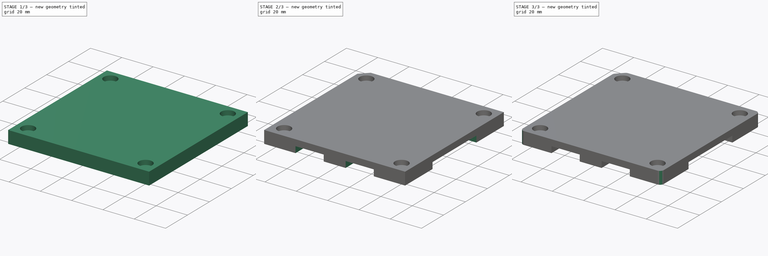
[diagram: build sequence overview — one tinted view per stage of 3, left to right]
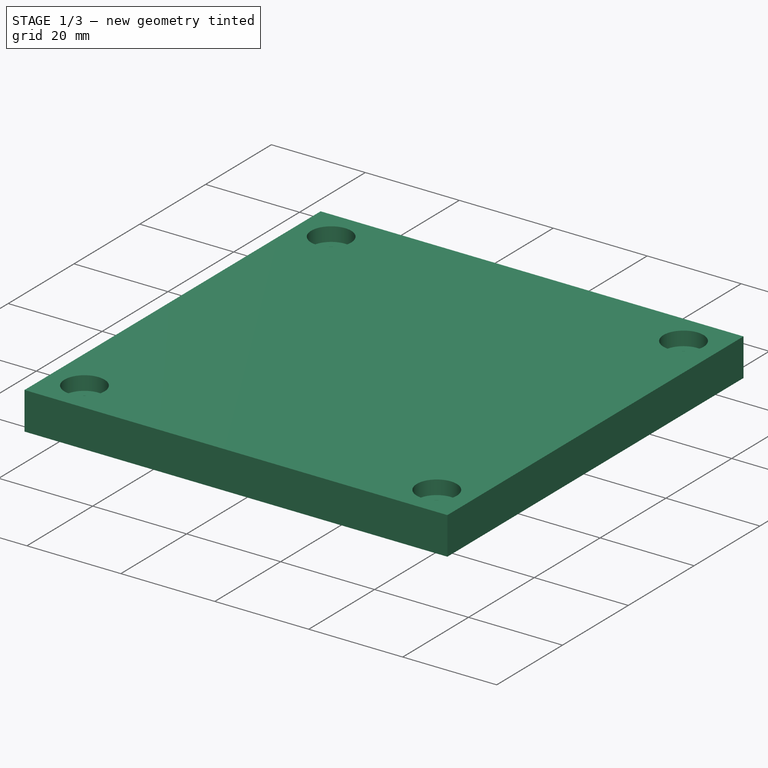
[diagram: stage 1 of 3 — iso view after this stage's code; geometry added in this stage tinted green]
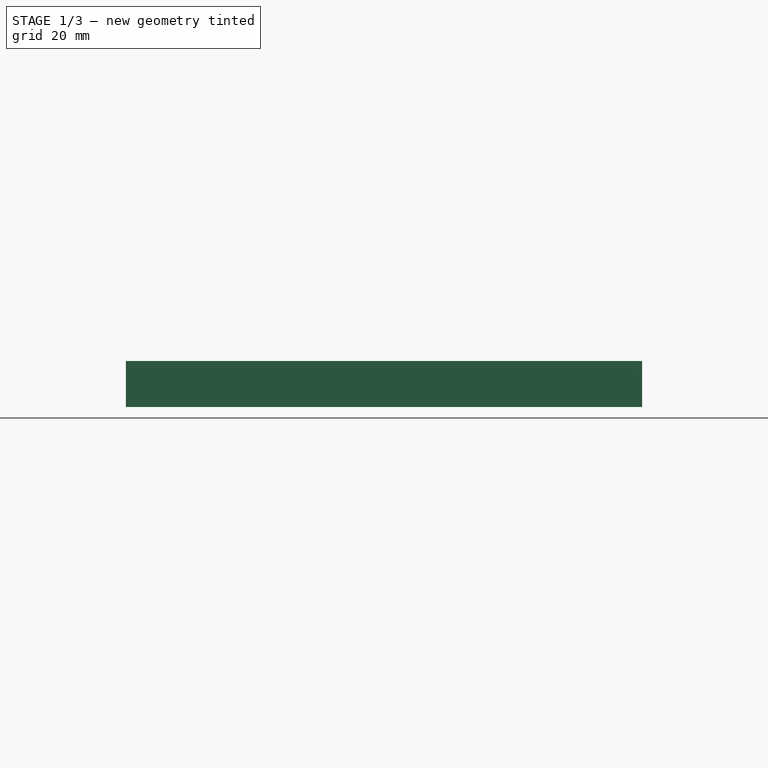
[diagram: stage 1 of 3 — front view after this stage's code; geometry added in this stage tinted green]
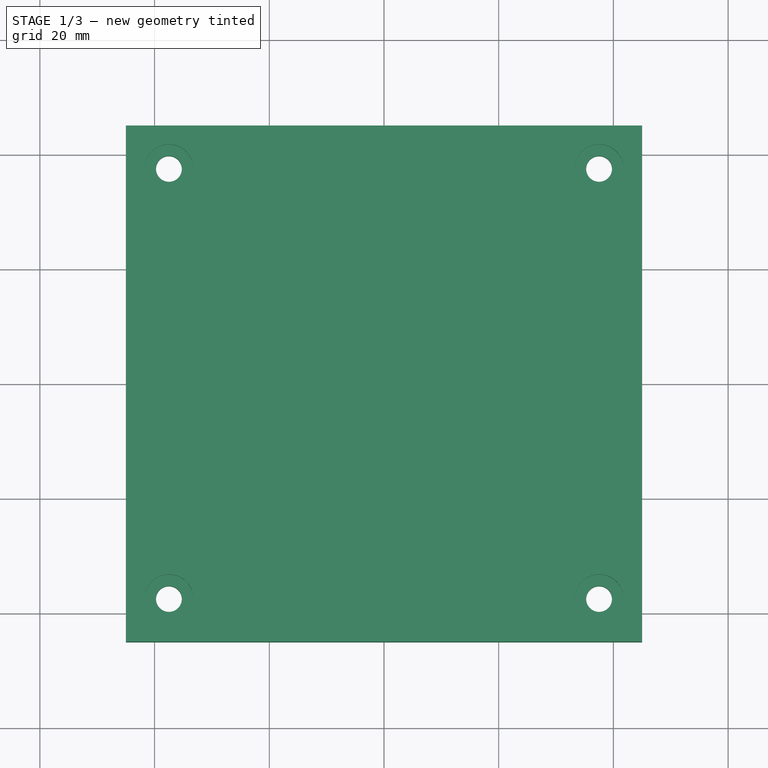
[diagram: stage 1 of 3 — top view after this stage's code; geometry added in this stage tinted green]
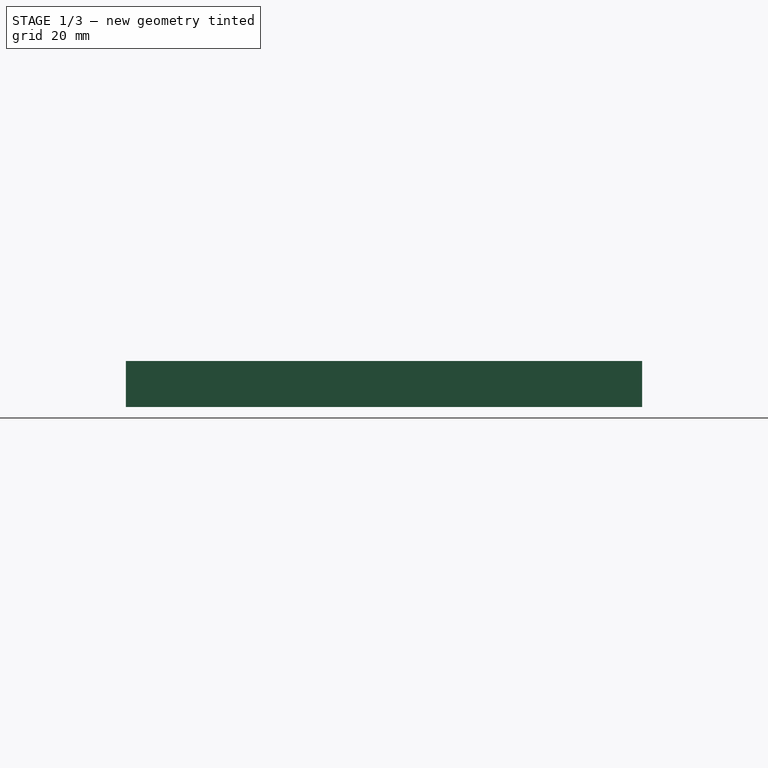
[diagram: stage 1 of 3 — right view after this stage's code; geometry added in this stage tinted green]
FCSTD DOCUMENT  (FreeCAD 1.0R39109 (Git))
Label: PortableMonitor_VESAmount
License: All rights reserved
LicenseURL: https://en.wikipedia.org/wiki/All_rights_reserved
objects: Sketcher::SketchObject×3, PartDesign::Pocket×2, PartDesign::Chamfer×2, PartDesign::Pad×1, PartDesign::Fillet×1, PartDesign::Body×1
note: 25 computed .brp shape members not serialized (recipe doc carries the construction recipe); baked Part::Feature solids carry a one-line shape summary decoded from their .brp

FEATURE [Sketcher::SketchObject] Sketch  label="Sketch_VESAmount_base"
  ArcFitTolerance = 1e-06
  AttachmentSupport = -> [XY_Plane]
  FullyConstrained = true
  MakeInternals = false
  MapMode = 5
  sketch-geometry (22):
    g0: LineSegment [constr] StartX=-37.5 StartY=-37.5 StartZ=0 EndX=37.5 EndY=-37.5 EndZ=0
    g1: LineSegment [constr] StartX=37.5 StartY=-37.5 StartZ=0 EndX=37.5 EndY=37.5 EndZ=0
    g2: LineSegment [constr] StartX=37.5 StartY=37.5 StartZ=0 EndX=-37.5 EndY=37.5 EndZ=0
    g3: LineSegment [constr] StartX=-37.5 StartY=37.5 StartZ=0 EndX=-37.5 EndY=-37.5 EndZ=0
    g4: GeomPoint [constr] X=0 Y=0 Z=0
    g5: Circle CenterX=-37.5 CenterY=37.5 CenterZ=0 NormalX=0 NormalY=0 NormalZ=1 AngleXU=0 Radius=2.25
    g6: Circle CenterX=37.5 CenterY=37.5 CenterZ=0 NormalX=0 NormalY=0 NormalZ=1 AngleXU=0 Radius=2.25
    g7: Circle CenterX=-37.5 CenterY=-37.5 CenterZ=0 NormalX=0 NormalY=0 NormalZ=1 AngleXU=0 Radius=2.25
    g8: Circle CenterX=37.5 CenterY=-37.5 CenterZ=0 NormalX=0 NormalY=0 NormalZ=1 AngleXU=0 Radius=2.25
    g9: LineSegment StartX=-45 StartY=-45 StartZ=0 EndX=45 EndY=-45 EndZ=0
    g10: LineSegment StartX=45 StartY=-45 StartZ=0 EndX=45 EndY=45 EndZ=0
    g11: LineSegment StartX=45 StartY=45 StartZ=0 EndX=-45 EndY=45 EndZ=0
    g12: LineSegment StartX=-45 StartY=45 StartZ=0 EndX=-45 EndY=-45 EndZ=0
    g13: GeomPoint [constr] X=0 Y=0 Z=0
    g14: LineSegment [constr] StartX=-142.5 StartY=74.5 StartZ=0 EndX=-142.5 EndY=-107.5 EndZ=0
    g15: LineSegment [constr] StartX=-142.5 StartY=-107.5 StartZ=0 EndX=142.5 EndY=-107.5 EndZ=0
    g16: LineSegment [constr] StartX=142.5 StartY=-107.5 StartZ=0 EndX=142.5 EndY=74.5 EndZ=0
    g17: LineSegment [constr] StartX=142.5 StartY=74.5 StartZ=0 EndX=-142.5 EndY=74.5 EndZ=0
    g18: LineSegment [constr] StartX=-142.5 StartY=-16.5 StartZ=0 EndX=142.5 EndY=-16.5 EndZ=0
    g19: LineSegment [constr] StartX=2.32e-14 StartY=74.5 StartZ=0 EndX=2.32e-14 EndY=-107.5 EndZ=0
    g20: GeomPoint [constr] X=1.4e-14 Y=-16.5 Z=0
    g21: LineSegment [constr] StartX=142.5 StartY=-20 StartZ=0 EndX=-142.5 EndY=-20 EndZ=0
  constraints (55):
    c: Coincident(g0,g1)
    c: Coincident(g1,g2)
    c: Coincident(g2,g3)
    c: Coincident(g3,g0)
    c: Horizontal(g0)
    c: Horizontal(g2)
    c: Vertical(g1)
    c: Vertical(g3)
    c: Symmetric(g2,g0,g4)
    c: Distance(g1,g3) = 75
    c: Distance(g0,g2) = 75
    c: Coincident(g4,g-1)
    c: Diameter(g5) = 4.5
    c: Coincident(g5,g2)
    c: Equal(g5,g6)
    c: Symmetric(g5,g6,g-2)
    c: Equal(g5,g7)
    c: Symmetric(g5,g7,g-1)
    c: Equal(g6,g8)
    c: Symmetric(g6,g8,g-1)
    c: Coincident(g9,g10)
    c: Coincident(g10,g11)
    c: Coincident(g11,g12)
    c: Coincident(g12,g9)
    c: Horizontal(g9)
    c: Horizontal(g11)
    c: Vertical(g10)
    c: Vertical(g12)
    c: Symmetric(g11,g9,g13)
    c: Distance(g10,g12) = 90
    c: Distance(g9,g11) = 90
    c: Coincident(g13,g4)
    c: Coincident(g14,g15)
    c: Coincident(g15,g16)
    c: Coincident(g16,g17)
    c: Coincident(g17,g14)
    c: Vertical(g14)
    c: Vertical(g16)
    c: Horizontal(g15)
    c: Horizontal(g17)
    c: Symmetric(g14,g14,g18)
    c: Symmetric(g16,g16,g18)
    c: Symmetric(g17,g17,g19)
    c: Symmetric(g15,g15,g19)
    c: Symmetric(g18,g18,g20)
    c: Distance(g6,g16) = 105
    c: Distance(g2,g14) = 105
    c: Distance(g6,g17) = 37
    c: Distance(g8,g15) = 70
    c: DistanceX(g15,g15) = 285
    c: PointOnObject(g21,g16)
    c: PointOnObject(g21,g14)
    c: Horizontal(g21)
    c: Distance(g8,g21) = 17.5  'usb_cable'
    c: Distance(g14,g12) = 97.5
FEATURE [PartDesign::Pad] Pad  label="VESAmount_base"
  Direction = (0,0,1)
  Length = 8
  Length2 = 10
  Profile = -> Sketch
  ReferenceAxis = -> Sketch [N_Axis]
  Refine = true
  Suppressed = false
  Type = 0
FEATURE [Sketcher::SketchObject] Sketch001  label="Sketch_Screw_counterbore"
  ArcFitTolerance = 1e-06
  AttachmentSupport = -> [Pad]
  FullyConstrained = true
  MakeInternals = false
  MapMode = 5
  Placement = pos=(0,0,8) rot=(0,0,1;0rad)
  sketch-geometry (4):
    g0: Circle CenterX=-37.5 CenterY=37.5 CenterZ=0 NormalX=0 NormalY=0 NormalZ=1 AngleXU=0 Radius=4.25
    g1: Circle CenterX=37.5 CenterY=37.5 CenterZ=0 NormalX=0 NormalY=0 NormalZ=1 AngleXU=0 Radius=4.25
    g2: Circle CenterX=-37.5 CenterY=-37.5 CenterZ=0 NormalX=0 NormalY=0 NormalZ=1 AngleXU=0 Radius=4.25
    g3: Circle CenterX=37.5 CenterY=-37.5 CenterZ=0 NormalX=0 NormalY=0 NormalZ=1 AngleXU=0 Radius=4.25
  constraints (9):
    c: Diameter(g0) = 8.5
    c: Distance(g0,g-1) = 37.5
    c: Distance(g0,g-2) = 37.5
    c: Equal(g0,g1)
    c: Symmetric(g0,g1,g-2)
    c: Equal(g0,g2)
    c: Symmetric(g0,g2,g-1)
    c: Equal(g1,g3)
    c: Symmetric(g1,g3,g-1)
FEATURE [PartDesign::Pocket] Pocket  label="Screw_counterbore"
  BaseFeature = -> Pad
  Direction = (0,0,-1)
  Length = 3
  Length2 = 5
  Profile = -> Sketch001
  ReferenceAxis = -> Sketch001 [N_Axis]
  Refine = true
  Suppressed = false
  Type = 0
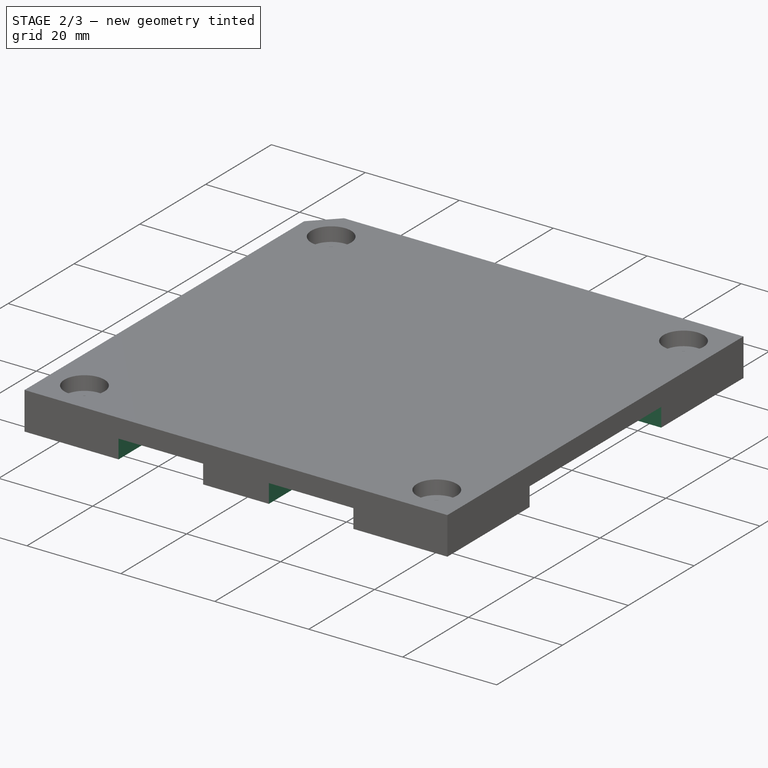
[diagram: stage 2 of 3 — iso view after this stage's code; geometry added in this stage tinted green]
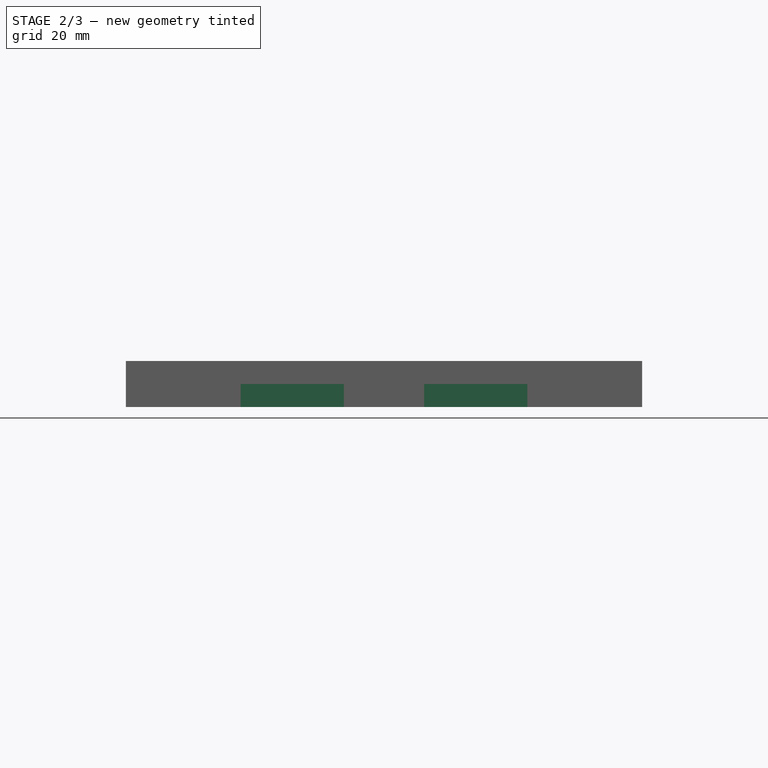
[diagram: stage 2 of 3 — front view after this stage's code; geometry added in this stage tinted green]
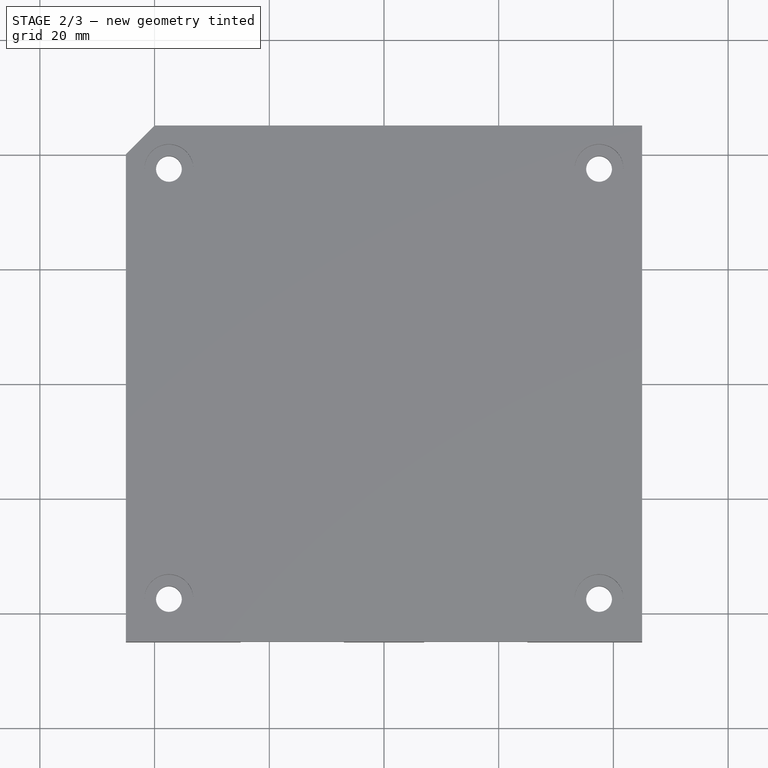
[diagram: stage 2 of 3 — top view after this stage's code; geometry added in this stage tinted green]
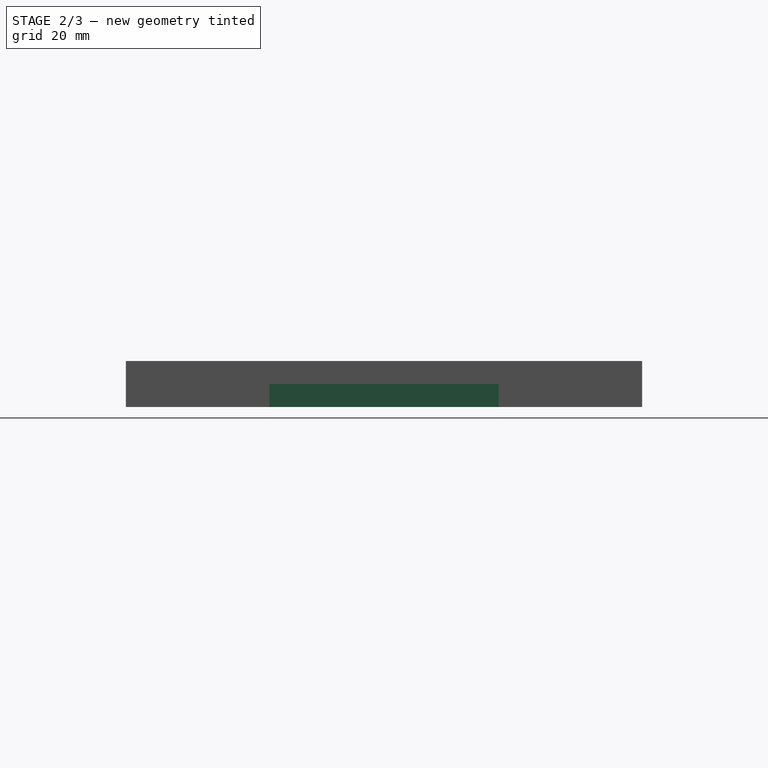
[diagram: stage 2 of 3 — right view after this stage's code; geometry added in this stage tinted green]
FEATURE [PartDesign::Chamfer] Chamfer  label="Chamfer_idx"
  Angle = 45
  Base = -> Pocket [Edge5]
  BaseFeature = -> Pocket
  ChamferType = 0
  FlipDirection = false
  Refine = true
  Size = 5
  Size2 = 1
  SupportTransform = false
  Suppressed = false
  UseAllEdges = false
FEATURE [Sketcher::SketchObject] Sketch002  label="Sketch_side_holder"
  ArcFitTolerance = 1e-06
  AttachmentSupport = -> [Chamfer]
  FullyConstrained = true
  MakeInternals = false
  MapMode = 5
  Placement = pos=(0,0,0) rot=(1,0,0;3.14159rad)
  sketch-geometry (18):
    g0: LineSegment [constr] StartX=-45 StartY=-45 StartZ=0 EndX=45 EndY=-45 EndZ=0
    g1: LineSegment [constr] StartX=45 StartY=-45 StartZ=0 EndX=45 EndY=45 EndZ=0
    g2: LineSegment [constr] StartX=45 StartY=45 StartZ=0 EndX=-45 EndY=45 EndZ=0
    g3: LineSegment [constr] StartX=-45 StartY=45 StartZ=0 EndX=-45 EndY=-45 EndZ=0
    g4: GeomPoint [constr] X=0 Y=0 Z=0
    g5: LineSegment StartX=-45 StartY=20 StartZ=0 EndX=-25 EndY=20 EndZ=0
    g6: LineSegment StartX=-25 StartY=20 StartZ=0 EndX=-25 EndY=45 EndZ=0
    g7: LineSegment StartX=-45 StartY=-20 StartZ=0 EndX=-7 EndY=-20 EndZ=0
    g8: LineSegment StartX=-7 StartY=-20 StartZ=0 EndX=-7 EndY=45 EndZ=0
    g9: LineSegment StartX=-7 StartY=45 StartZ=0 EndX=-25 EndY=45 EndZ=0
    g10: LineSegment StartX=-45 StartY=20 StartZ=0 EndX=-45 EndY=-20 EndZ=0
    g11: LineSegment StartX=45 StartY=20 StartZ=0 EndX=25 EndY=20 EndZ=0
    g12: LineSegment StartX=25 StartY=20 StartZ=0 EndX=25 EndY=45 EndZ=0
    g13: LineSegment StartX=45 StartY=-20 StartZ=0 EndX=7 EndY=-20 EndZ=0
    g14: LineSegment StartX=7 StartY=-20 StartZ=0 EndX=7 EndY=45 EndZ=0
    g15: LineSegment StartX=7 StartY=45 StartZ=0 EndX=25 EndY=45 EndZ=0
    g16: LineSegment StartX=45 StartY=20 StartZ=0 EndX=45 EndY=-20 EndZ=0
    g17: GeomPoint [constr] X=-16 Y=45 Z=0
  constraints (46):
    c: Coincident(g0,g1)
    c: Coincident(g1,g2)
    c: Coincident(g2,g3)
    c: Coincident(g3,g0)
    c: Horizontal(g0)
    c: Horizontal(g2)
    c: Vertical(g1)
    c: Vertical(g3)
    c: Symmetric(g2,g0,g4)
    c: Distance(g1,g3) = 90
    c: Distance(g0,g2) = 90
    c: Coincident(g4,g-1)
    c: Distance(g5) = 20
    c: Horizontal(g5)
    c: PointOnObject(g5,g3)
    c: Distance(g6) = 25
    c: Coincident(g6,g5)
    c: PointOnObject(g6,g2)
    c: Vertical(g6)
    c: Distance(g7) = 38
    c: Horizontal(g7)
    c: PointOnObject(g7,g3)
    c: Distance(g5,g7) = 40
    c: Coincident(g8,g7)
    c: PointOnObject(g8,g2)
    c: Vertical(g8)
    c: Coincident(g9,g8)
    c: Coincident(g9,g6)
    c: Coincident(g10,g5)
    c: Coincident(g10,g7)
    c: Symmetric(g5,g11,g-2)
    c: Symmetric(g5,g11,g-2)
    c: Symmetric(g6,g12,g-2)
    c: Symmetric(g6,g12,g-2)
    c: Symmetric(g7,g13,g-2)
    c: Symmetric(g7,g13,g-2)
    c: Symmetric(g8,g14,g-2)
    c: Symmetric(g8,g14,g-2)
    c: Symmetric(g9,g15,g-2)
    c: Symmetric(g9,g15,g-2)
    c: Symmetric(g10,g16,g-2)
    c: Symmetric(g10,g16,g-2)
    c: Distance(g8,g6) = 18
    c: Distance(g0,g7) = 25
    c: Symmetric(g9,g9,g17)
    c: DistanceX(g17,g4) = 16
FEATURE [PartDesign::Pocket] Pocket001  label="side_holder"
  BaseFeature = -> Chamfer
  Direction = (0,0,1)
  Length = 4
  Length2 = 5
  Profile = -> Sketch002
  ReferenceAxis = -> Sketch002 [N_Axis]
  Refine = true
  Suppressed = false
  Type = 0
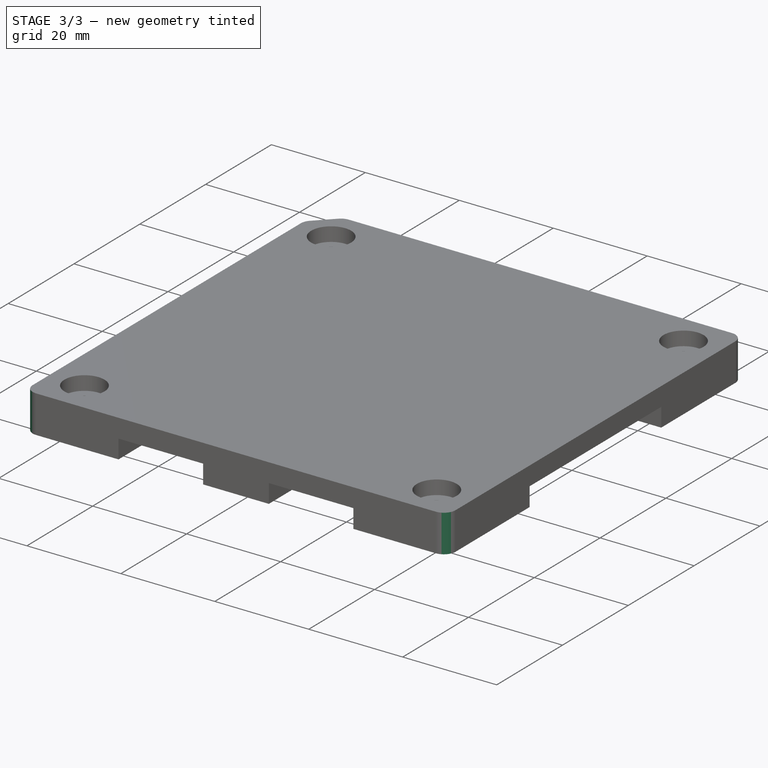
[diagram: stage 3 of 3 — iso view after this stage's code; geometry added in this stage tinted green]
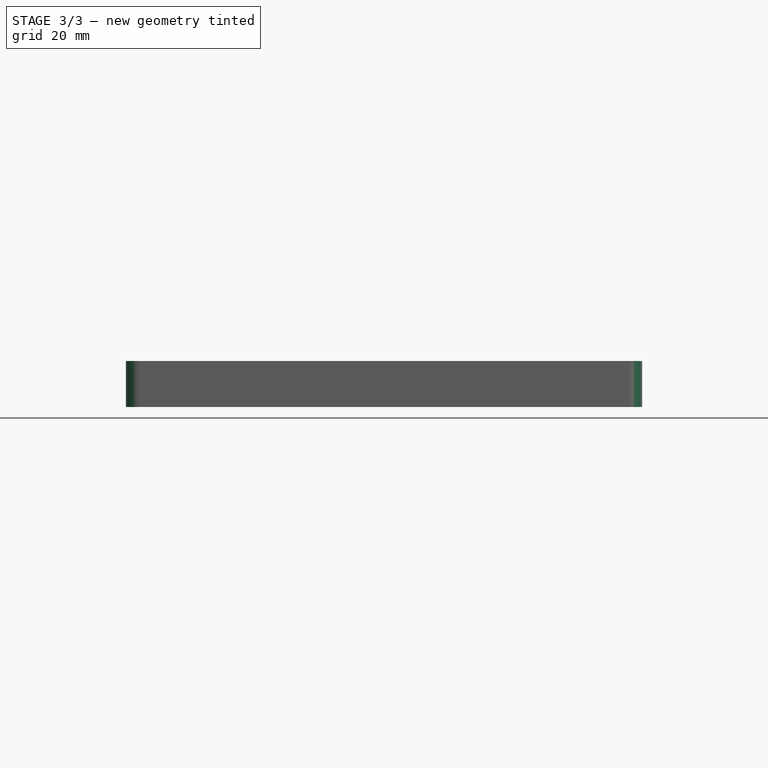
[diagram: stage 3 of 3 — front view after this stage's code; geometry added in this stage tinted green]
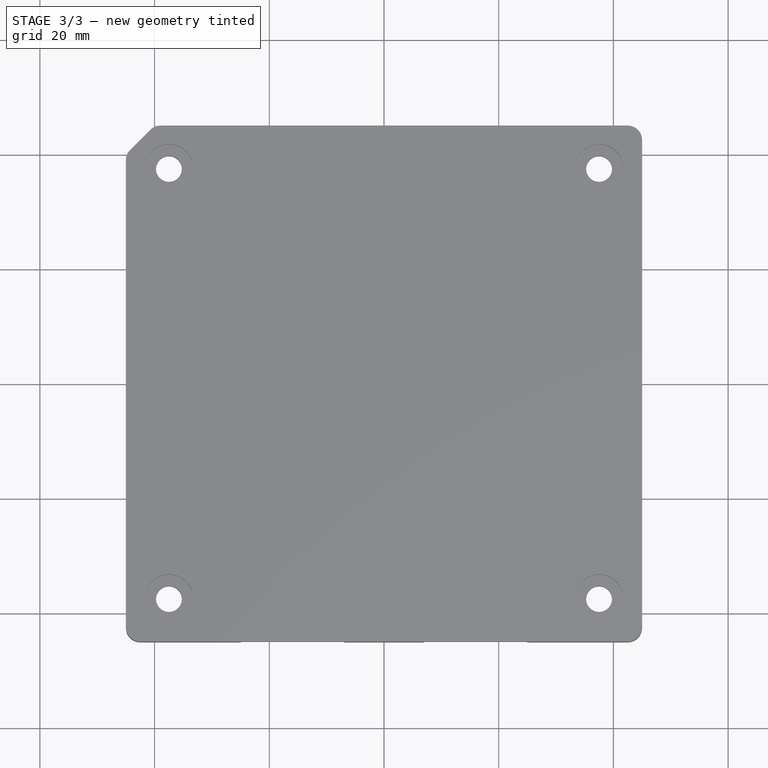
[diagram: stage 3 of 3 — top view after this stage's code; geometry added in this stage tinted green]
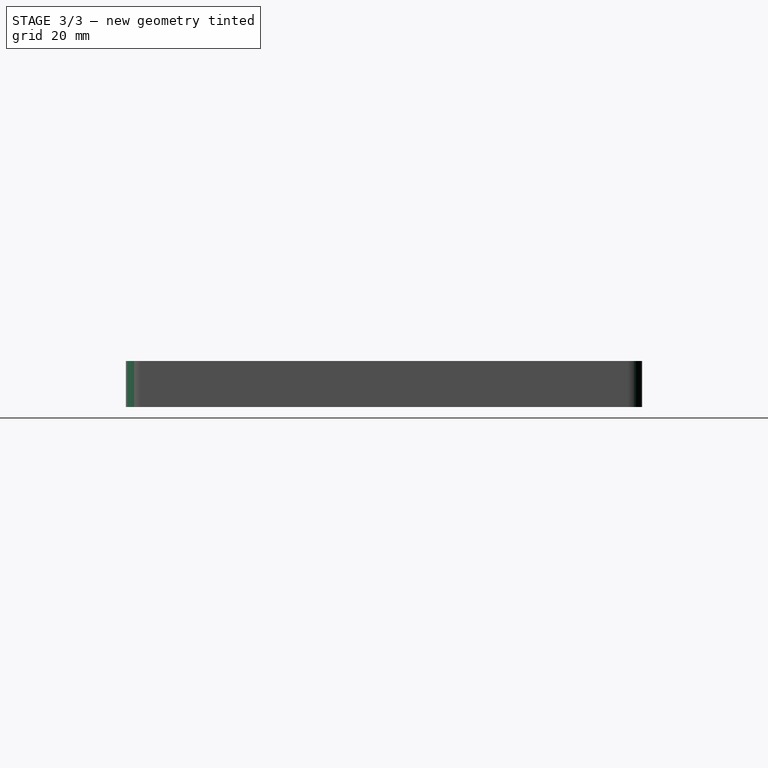
[diagram: stage 3 of 3 — right view after this stage's code; geometry added in this stage tinted green]
FEATURE [PartDesign::Fillet] Fillet  label="Fillet_corner"
  Base = -> Pocket001 [Edge36,Edge46,Edge6,Edge45,Edge8]
  BaseFeature = -> Pocket001
  Radius = 2.5
  Refine = true
  SupportTransform = false
  Suppressed = false
  UseAllEdges = false
FEATURE [PartDesign::Chamfer] Chamfer001  label="Chamfer_inner"
  Angle = 45
  Base = -> Fillet [Edge86,Edge44]
  BaseFeature = -> Fillet
  ChamferType = 0
  FlipDirection = false
  Refine = true
  Size = 2.5
  Size2 = 1
  SupportTransform = false
  Suppressed = false
  UseAllEdges = false
FEATURE [PartDesign::Body] Body
  AllowCompound = false
  Group = -> [Sketch,Pad,Sketch001,Pocket,Chamfer,Sketch002,Pocket001,Fillet,Chamfer001]
  Origin = -> Origin
  Tip = -> Chamfer001
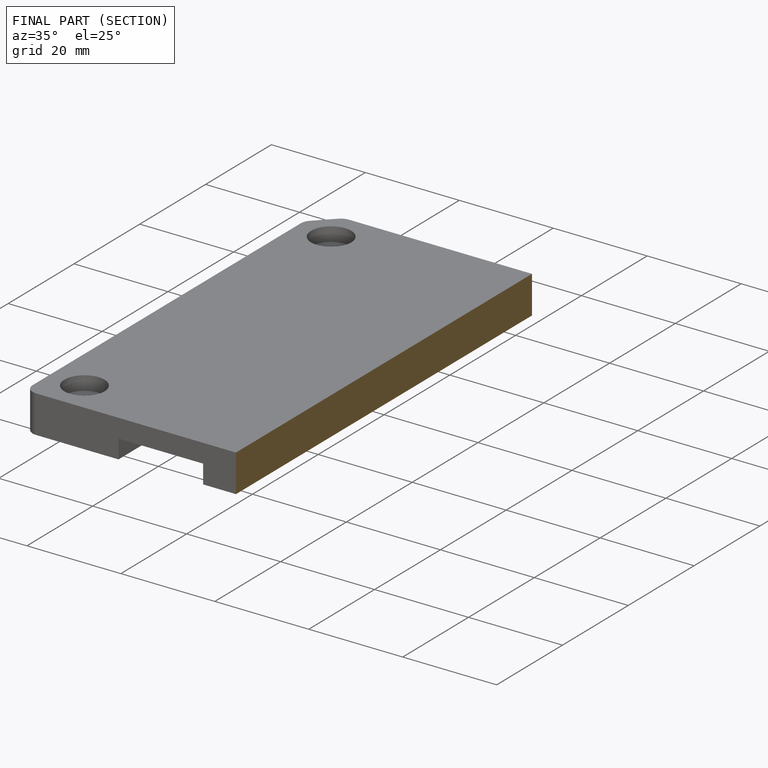
[diagram: finished part — half-section view (interior)]
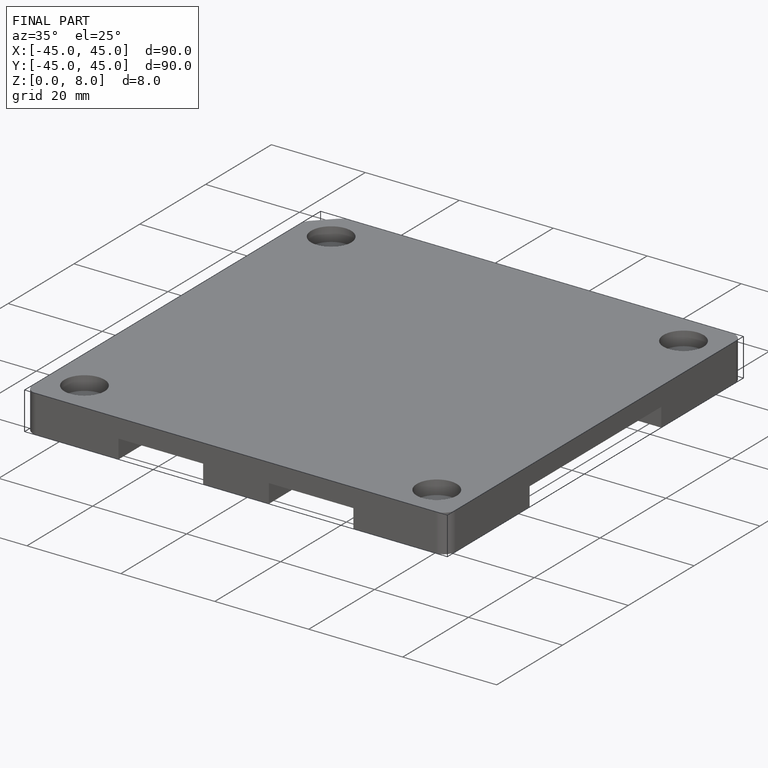
[diagram: finished part — iso view with bounding-box wireframe]
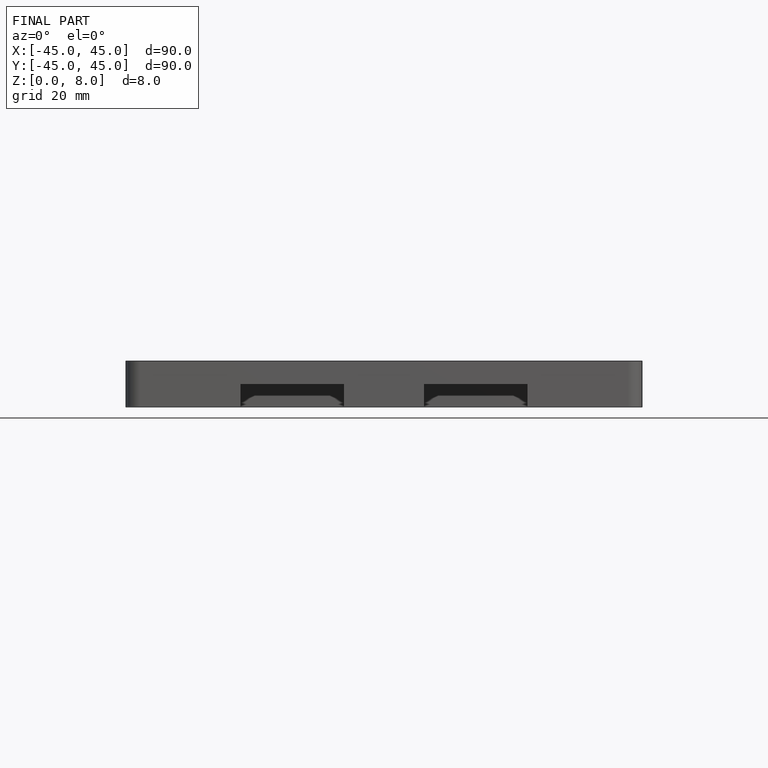
[diagram: finished part — front view with bounding-box wireframe]
